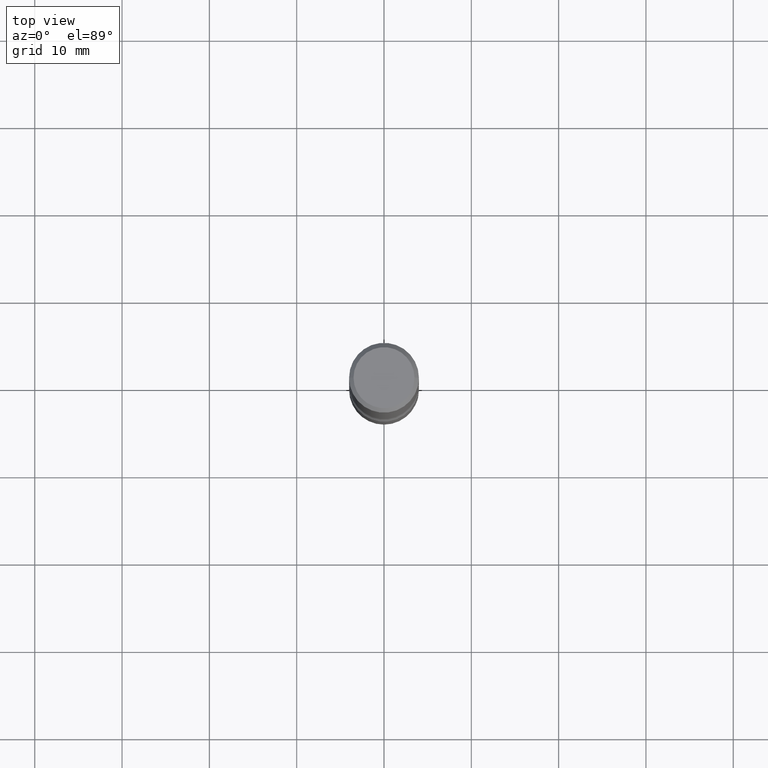
[diagram: clean part render]
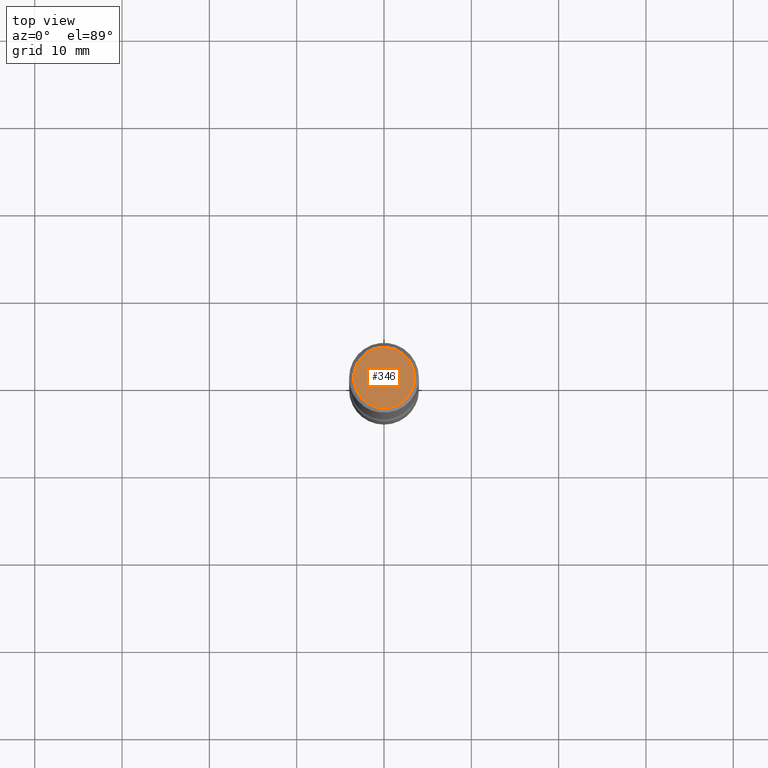
[diagram: same view with one face highlighted and labeled with its STEP entity id]
A machine part, top view. The second image highlights one B-rep face of the part: STEP entity #346.
In plain terms, the highlighted planar face has unit normal (-0, 0, 1).
Its self-contained STEP definition (entity closure, byte-faithful):
#1 = DIRECTION ( 'NONE',  ( 2.445468806185136597E-29, -3.491481338843145583E-15, -1.000000000000000000 ) ) ;
#14 = ORIENTED_EDGE ( 'NONE', *, *, #439, .F. ) ;
#54 = CIRCLE ( 'NONE', #454, 0.1374999999999997335 ) ;
#57 = DIRECTION ( 'NONE',  ( -2.438088387897960049E-29, 3.491481338843145188E-15, 1.000000000000000000 ) ) ;
#63 = VERTEX_POINT ( 'NONE', #121 ) ;
#99 = FACE_OUTER_BOUND ( 'NONE', #466, .T. ) ;
#114 = CIRCLE ( 'NONE', #435, 0.1374999999999997335 ) ;
#121 = CARTESIAN_POINT ( 'NONE',  ( 0.1374999999999997335, -1.046838268059730717E-15, 7.017535886221985357E-30 ) ) ;
#172 = EDGE_CURVE ( 'NONE', #444, #63, #54, .T. ) ;
#194 = DIRECTION ( 'NONE',  ( -1.000000000000000000, 6.982962677686265922E-15, -4.876176775795935793E-29 ) ) ;
#241 = CARTESIAN_POINT ( 'NONE',  ( -0.1374999999999997335, 9.601573681818597005E-16, -6.704743066719399103E-30 ) ) ;
#256 = CARTESIAN_POINT ( 'NONE',  ( 0.000000000000000000, 0.000000000000000000, 0.000000000000000000 ) ) ;
#274 = PLANE ( 'NONE',  #505 ) ;
#283 = ORIENTED_EDGE ( 'NONE', *, *, #172, .F. ) ;
#286 = CARTESIAN_POINT ( 'NONE',  ( 0.000000000000000000, 0.000000000000000000, 0.000000000000000000 ) ) ;
#326 = DIRECTION ( 'NONE',  ( 2.445468806185136597E-29, -3.491481338843145583E-15, -1.000000000000000000 ) ) ;
#346 = ADVANCED_FACE ( 'NONE', ( #99 ), #274, .T. ) ;
#435 = AXIS2_PLACEMENT_3D ( 'NONE', #286, #326, #194 ) ;
#439 = EDGE_CURVE ( 'NONE', #63, #444, #114, .T. ) ;
#444 = VERTEX_POINT ( 'NONE', #241 ) ;
#447 = CARTESIAN_POINT ( 'NONE',  ( 9.601573681818597005E-16, 0.1374999999999997335, -4.779444278458813133E-16 ) ) ;
#454 = AXIS2_PLACEMENT_3D ( 'NONE', #256, #1, #520 ) ;
#466 = EDGE_LOOP ( 'NONE', ( #283, #14 ) ) ;
#497 = DIRECTION ( 'NONE',  ( 1.000000000000000000, -6.982962677686265922E-15, 4.876176775795935793E-29 ) ) ;
#505 = AXIS2_PLACEMENT_3D ( 'NONE', #447, #57, #497 ) ;
#520 = DIRECTION ( 'NONE',  ( -1.000000000000000000, 6.982962677686265922E-15, -4.876176775795935793E-29 ) ) ;